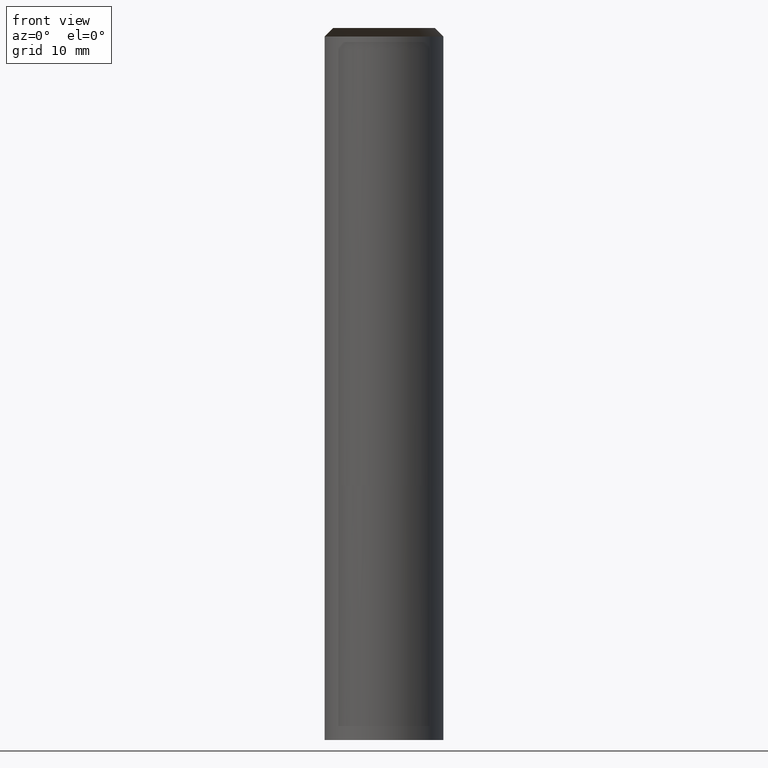
[diagram: clean part render]
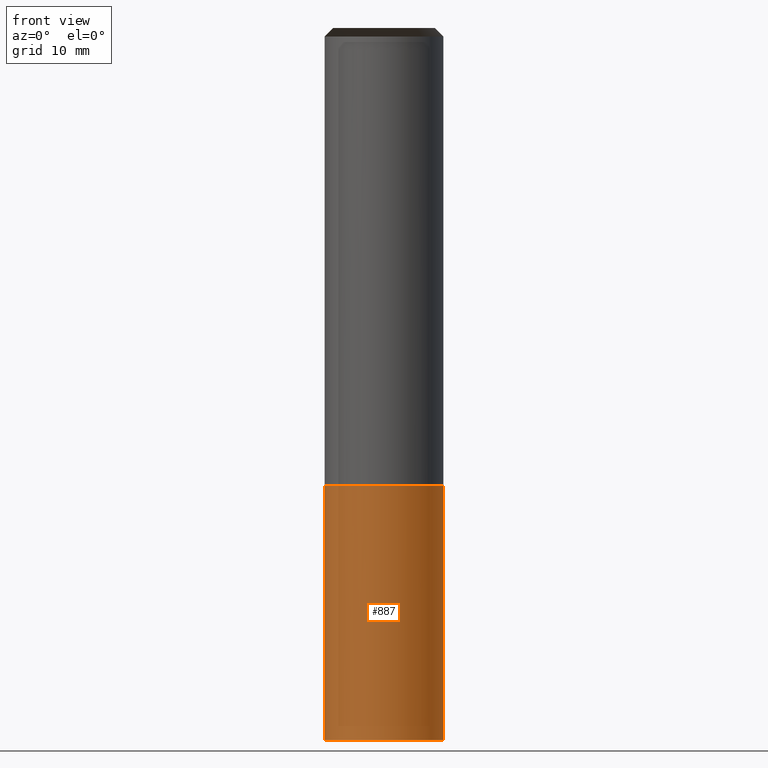
[diagram: same view with one face highlighted and labeled with its STEP entity id]
A machine part, front view. The second image highlights one B-rep face of the part: STEP entity #887.
In plain terms, the highlighted face is a freeform B-spline surface patch.
Its self-contained STEP definition (entity closure, byte-faithful):
#109=CARTESIAN_POINT('',(0.0,-7.0,-30.0));
#763=CARTESIAN_POINT('',(7.0,0.0,-30.0));
#766=CARTESIAN_POINT('',(-7.0,0.0,-30.0));
#767=CARTESIAN_POINT('',(7.0,0.0,0.0));
#771=CARTESIAN_POINT('',(-7.0,0.0,0.0));
#773=CARTESIAN_POINT('',(-7.0,-7.0,-30.0));
#774=CARTESIAN_POINT('',(7.0,-7.0,-30.0));
#775=CARTESIAN_POINT('',(-7.0,-7.0,0.0));
#776=CARTESIAN_POINT('',(0.0,-7.0,0.0));
#777=CARTESIAN_POINT('',(7.0,-7.0,0.0));
#868=(
BOUNDED_SURFACE()
B_SPLINE_SURFACE(1,2,(
(#766,#773,#109,#774,#763),
(#771,#775,#776,#777,#767)
), .UNSPECIFIED.,.F.,.F.,.F.)
B_SPLINE_SURFACE_WITH_KNOTS((2,2),(3,2,3),(
0.0,1.0),(
0.0,0.5,1.0), .UNSPECIFIED.)
GEOMETRIC_REPRESENTATION_ITEM()
RATIONAL_B_SPLINE_SURFACE(((1.0,0.707106781187,1.0,0.707106781187,1.0),
(1.0,0.707106781187,1.0,0.707106781187,1.0)
))
REPRESENTATION_ITEM('')
SURFACE()
);
#869=(
BOUNDED_CURVE()
B_SPLINE_CURVE(2,(#763,#774,#109,#773,#766),.UNSPECIFIED.,.F.,.F.)
B_SPLINE_CURVE_WITH_KNOTS((3,2,3),
(0.0,0.5,1.0),.UNSPECIFIED.)
CURVE()
GEOMETRIC_REPRESENTATION_ITEM()
RATIONAL_B_SPLINE_CURVE((1.0,0.707106781187,1.0,0.707106781187,1.0))
REPRESENTATION_ITEM('')
);
#870=(
BOUNDED_CURVE()
B_SPLINE_CURVE(1,(#766,#771),.UNSPECIFIED.,.F.,.F.)
B_SPLINE_CURVE_WITH_KNOTS((2,2),
(0.0,1.0),.UNSPECIFIED.)
CURVE()
GEOMETRIC_REPRESENTATION_ITEM()
RATIONAL_B_SPLINE_CURVE((1.0,1.0))
REPRESENTATION_ITEM('')
);
#871=(
BOUNDED_CURVE()
B_SPLINE_CURVE(2,(#771,#775,#776,#777,#767),.UNSPECIFIED.,.F.,.F.)
B_SPLINE_CURVE_WITH_KNOTS((3,2,3),
(0.0,0.5,1.0),.UNSPECIFIED.)
CURVE()
GEOMETRIC_REPRESENTATION_ITEM()
RATIONAL_B_SPLINE_CURVE((1.0,0.707106781187,1.0,0.707106781187,1.0))
REPRESENTATION_ITEM('')
);
#872=(
BOUNDED_CURVE()
B_SPLINE_CURVE(1,(#767,#763),.UNSPECIFIED.,.F.,.F.)
B_SPLINE_CURVE_WITH_KNOTS((2,2),
(0.0,1.0),.UNSPECIFIED.)
CURVE()
GEOMETRIC_REPRESENTATION_ITEM()
RATIONAL_B_SPLINE_CURVE((1.0,1.0))
REPRESENTATION_ITEM('')
);
#873=VERTEX_POINT('',#763);
#874=VERTEX_POINT('',#766);
#875=VERTEX_POINT('',#767);
#876=VERTEX_POINT('',#771);
#877=EDGE_CURVE('',#873,#874,#869,.T.);
#878=EDGE_CURVE('',#874,#876,#870,.T.);
#879=EDGE_CURVE('',#876,#875,#871,.T.);
#880=EDGE_CURVE('',#875,#873,#872,.T.);
#881=ORIENTED_EDGE('',*,*,#877,.T.);
#882=ORIENTED_EDGE('',*,*,#878,.T.);
#883=ORIENTED_EDGE('',*,*,#879,.T.);
#884=ORIENTED_EDGE('',*,*,#880,.T.);
#885=EDGE_LOOP('',(#881,#882,#883,#884));
#886=FACE_OUTER_BOUND('',#885,.T.);
#887=ADVANCED_FACE('',(#886),#868,.T.);